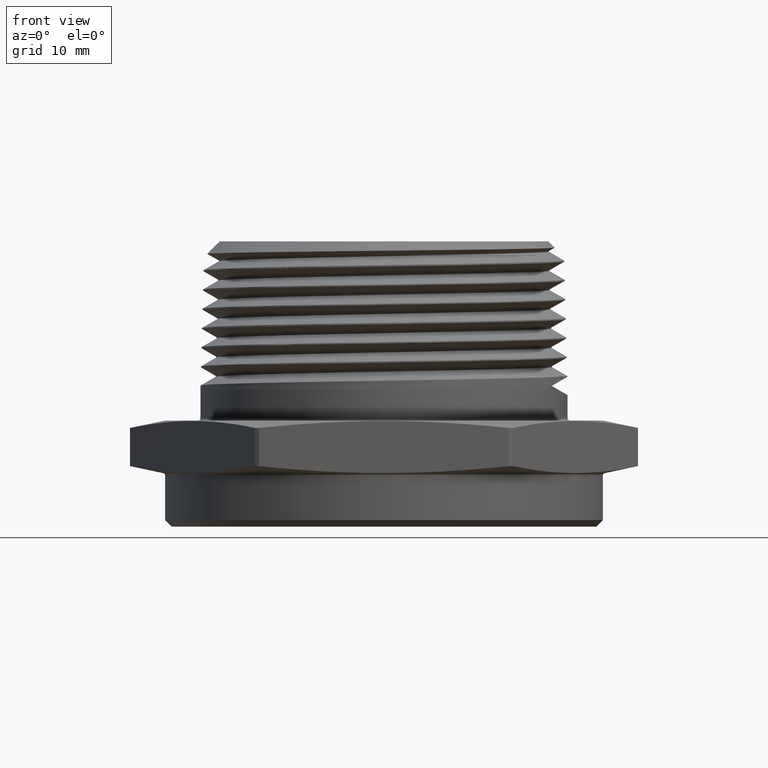
[diagram: clean part render]
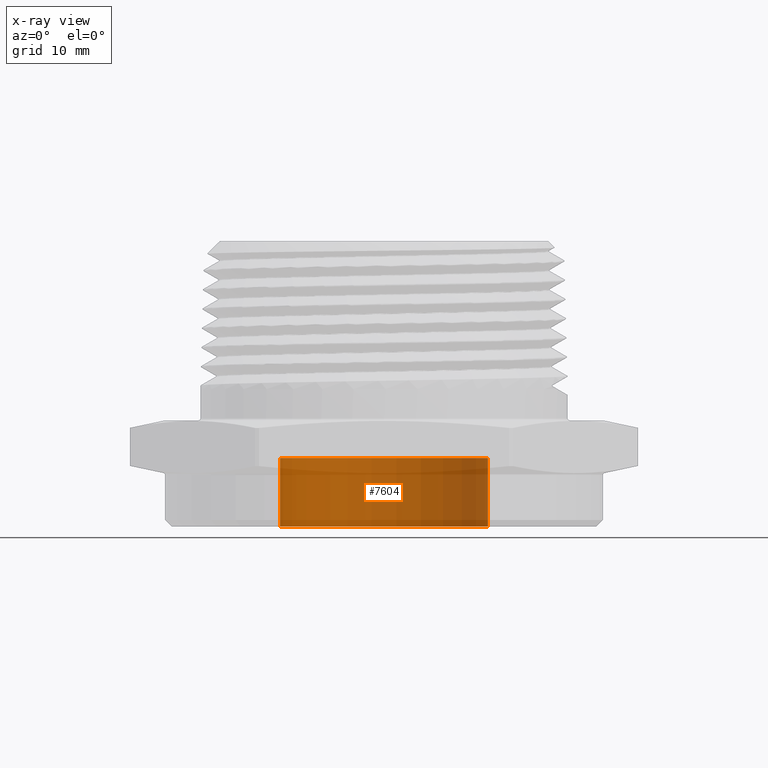
[diagram: x-ray — body ghosted, one internal face saturated and labeled with its STEP entity id]
A machine part, front view, then the same camera in x-ray: the body is ghosted and one INTERNAL B-rep face — a face not visible from any outside direction — is saturated and labeled: STEP entity #7604.
In plain terms, the highlighted cylindrical surface (partial cylindrical patch) has radius 11.938 mm, axis along (-0, -0, -1).
Its self-contained STEP definition (entity closure, byte-faithful):
#126 = EDGE_LOOP ( 'NONE', ( #143, #142, #141, #140 ) ) ;
#140 = ORIENTED_EDGE ( 'NONE', *, *, #4732, .F. ) ;
#141 = ORIENTED_EDGE ( 'NONE', *, *, #4731, .T. ) ;
#142 = ORIENTED_EDGE ( 'NONE', *, *, #4729, .T. ) ;
#143 = ORIENTED_EDGE ( 'NONE', *, *, #4730, .F. ) ;
#238 = AXIS2_PLACEMENT_3D ( 'NONE', #7236, #7237, #7238 ) ;
#239 = AXIS2_PLACEMENT_3D ( 'NONE', #7240, #7241, #7242 ) ;
#827 = CARTESIAN_POINT ( 'NONE',  ( 0.4699999999999999700, 5.755839955992559700E-017, 0.3100000000000000000 ) ) ;
#839 = CARTESIAN_POINT ( 'NONE',  ( 0.4699999999999999700, 5.755839955992559700E-017, 0.0000000000000000000 ) ) ;
#843 = CARTESIAN_POINT ( 'NONE',  ( -0.4699999999999999700, 0.0000000000000000000, 0.0000000000000000000 ) ) ;
#844 = CARTESIAN_POINT ( 'NONE',  ( -0.4699999999999999700, 0.0000000000000000000, 0.3100000000000000000 ) ) ;
#1146 = FACE_OUTER_BOUND ( 'NONE', #126, .T. ) ;
#1152 = CYLINDRICAL_SURFACE ( 'NONE', #7637, 0.4699999999999999700 ) ;
#4522 = DIRECTION ( 'NONE',  ( -0.0000000000000000000, -0.0000000000000000000, -1.000000000000000000 ) ) ;
#4523 = DIRECTION ( 'NONE',  ( -1.000000000000000000, 0.0000000000000000000, 0.0000000000000000000 ) ) ;
#4526 = CARTESIAN_POINT ( 'NONE',  ( 0.0000000000000000000, 0.0000000000000000000, 0.3100000000000000000 ) ) ;
#4729 = EDGE_CURVE ( 'NONE', #7305, #7300, #7539, .T. ) ;
#4730 = EDGE_CURVE ( 'NONE', #7305, #7301, #7528, .T. ) ;
#4731 = EDGE_CURVE ( 'NONE', #7300, #7299, #7543, .T. ) ;
#4732 = EDGE_CURVE ( 'NONE', #7301, #7299, #7545, .T. ) ;
#7232 = CARTESIAN_POINT ( 'NONE',  ( 0.4699999999999999700, 5.755839955992559700E-017, 0.3100000000000000000 ) ) ;
#7233 = DIRECTION ( 'NONE',  ( -0.0000000000000000000, -0.0000000000000000000, -1.000000000000000000 ) ) ;
#7234 = CARTESIAN_POINT ( 'NONE',  ( -0.4699999999999999700, 0.0000000000000000000, 0.3100000000000000000 ) ) ;
#7235 = DIRECTION ( 'NONE',  ( -0.0000000000000000000, -0.0000000000000000000, -1.000000000000000000 ) ) ;
#7236 = CARTESIAN_POINT ( 'NONE',  ( 0.0000000000000000000, 0.0000000000000000000, 0.3100000000000000000 ) ) ;
#7237 = DIRECTION ( 'NONE',  ( 0.0000000000000000000, 0.0000000000000000000, 1.000000000000000000 ) ) ;
#7238 = DIRECTION ( 'NONE',  ( 1.000000000000000000, 0.0000000000000000000, 0.0000000000000000000 ) ) ;
#7240 = CARTESIAN_POINT ( 'NONE',  ( 0.0000000000000000000, 0.0000000000000000000, 0.0000000000000000000 ) ) ;
#7241 = DIRECTION ( 'NONE',  ( 0.0000000000000000000, 0.0000000000000000000, 1.000000000000000000 ) ) ;
#7242 = DIRECTION ( 'NONE',  ( 1.000000000000000000, 0.0000000000000000000, 0.0000000000000000000 ) ) ;
#7299 = VERTEX_POINT ( 'NONE', #843 ) ;
#7300 = VERTEX_POINT ( 'NONE', #839 ) ;
#7301 = VERTEX_POINT ( 'NONE', #844 ) ;
#7305 = VERTEX_POINT ( 'NONE', #827 ) ;
#7528 = CIRCLE ( 'NONE', #238, 0.4699999999999999700 ) ;
#7539 = LINE ( 'NONE', #7232, #7542 ) ;
#7542 = VECTOR ( 'NONE', #7233, 39.37007874015748100 ) ;
#7543 = CIRCLE ( 'NONE', #239, 0.4699999999999999700 ) ;
#7545 = LINE ( 'NONE', #7234, #7548 ) ;
#7548 = VECTOR ( 'NONE', #7235, 39.37007874015748100 ) ;
#7604 = ADVANCED_FACE ( 'NONE', ( #1146 ), #1152, .T. ) ;
#7637 = AXIS2_PLACEMENT_3D ( 'NONE', #4526, #4522, #4523 ) ;